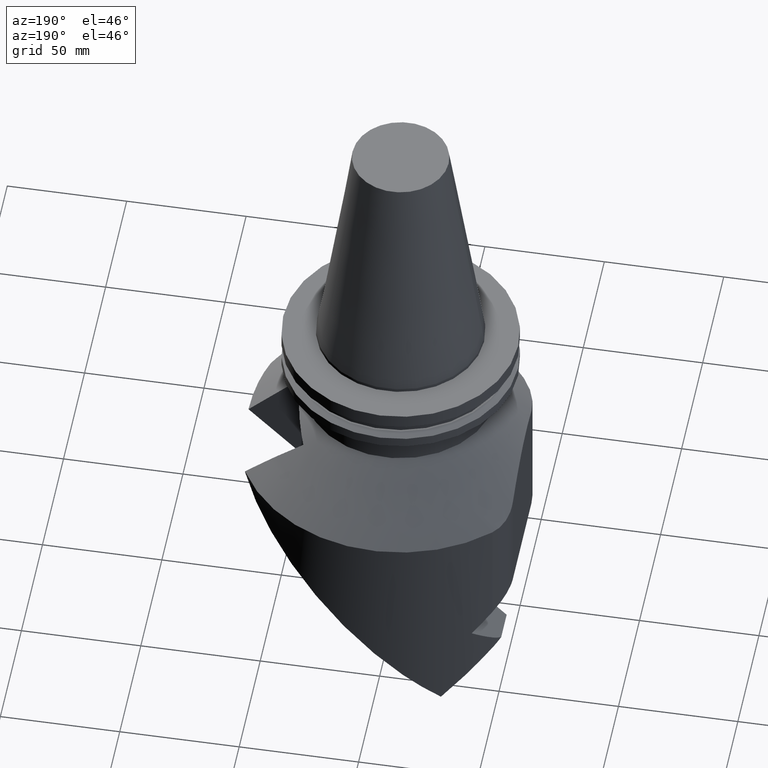
[diagram: clean part render]
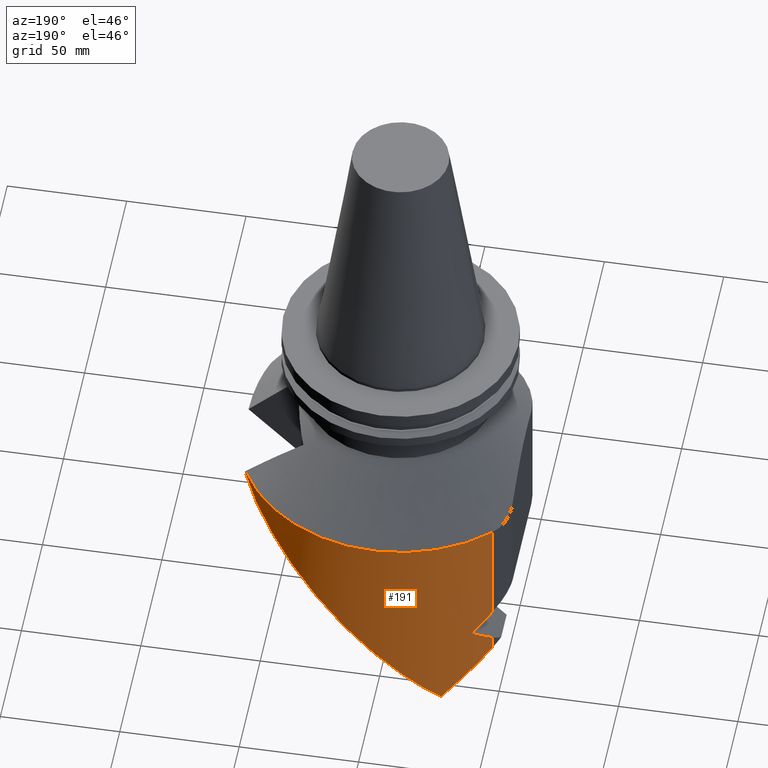
[diagram: same view with one face highlighted and labeled with its STEP entity id]
A machine part, auxiliary view. The second image highlights one B-rep face of the part: STEP entity #191.
In plain terms, the highlighted cylindrical surface (partial cylindrical patch) has radius 67.5 mm, axis along (-0, -0, -1).
Its self-contained STEP definition (entity closure, byte-faithful):
#142=EDGE_CURVE('Unnamed[1]',#345,#378,#382,.T.);
#156=EDGE_CURVE('Unnamed[1]',#378,#405,#406,.T.);
#167=EDGE_CURVE('Unnamed[1]',#334,#421,#422,.T.);
#175=EDGE_CURVE('Unnamed[1]',#421,#433,#434,.T.);
#191=ADVANCED_FACE('Unnamed[1]',(#456),#457,.T.);
#230=EDGE_CURVE('Unnamed[1]',#508,#359,#509,.T.);
#284=EDGE_CURVE('Unnamed[1]',#359,#345,#576,.T.);
#300=EDGE_CURVE('Unnamed[1]',#405,#334,#597,.T.);
#302=EDGE_CURVE('Unnamed[1]',#433,#508,#599,.T.);
#334=VERTEX_POINT('',#626);
#345=VERTEX_POINT('',#649);
#359=VERTEX_POINT('',#667);
#378=VERTEX_POINT('',#692);
#382=ELLIPSE('',#697,95.459415460198,67.5000000000011);
#405=VERTEX_POINT('',#739);
#406=LINE('',#740,#741);
#421=VERTEX_POINT('',#762);
#422=LINE('',#763,#764);
#433=VERTEX_POINT('',#789);
#434=ELLIPSE('',#790,95.4594154601865,67.5000000000011);
#456=FACE_OUTER_BOUND('',#818,.T.);
#457=CYLINDRICAL_SURFACE('',#819,67.5000000000011);
#508=VERTEX_POINT('',#924);
#509=LINE('',#925,#926);
#576=ELLIPSE('',#1050,95.4594154601875,67.5000000000011);
#597=CIRCLE('',#1078,67.5000000000005);
#599=ELLIPSE('',#1081,95.4594154601836,67.5000000000011);
#626=CARTESIAN_POINT('',(59.5666643350096,31.7500000000006,-63.1500223208128));
#649=CARTESIAN_POINT('',(-39.3858477120931,54.8179259002038,-117.953871570686));
#667=CARTESIAN_POINT('',(-46.8947368421079,48.5503208692747,-125.462760700701));
#692=CARTESIAN_POINT('',(-46.8947368421079,48.5503208692747,-110.444982440669));
#697=AXIS2_PLACEMENT_3D('',#1164,#1165,#1166);
#739=CARTESIAN_POINT('',(-46.8947368421073,48.5503208692774,-63.1500223208108));
#740=CARTESIAN_POINT('',(-46.8947368421079,48.5503208692747,-292.69346914569));
#741=VECTOR('',#1189,1.0);
#762=CARTESIAN_POINT('',(59.5666643350103,31.7500000000006,-63.549086738336));
#763=CARTESIAN_POINT('',(59.5666643350094,31.7500000000008,-106.992179608336));
#764=VECTOR('',#1204,1.0);
#789=CARTESIAN_POINT('',(-27.7185858225151,61.5461615375015,-150.83433689586));
#790=AXIS2_PLACEMENT_3D('',#1209,#1210,#1211);
#818=EDGE_LOOP('',(#1242,#1243,#1244,#1245,#1246,#1247,#1248,#1249));
#819=AXIS2_PLACEMENT_3D('',#1250,#1251,#1252);
#924=CARTESIAN_POINT('',(-46.8947368421079,48.5503208692747,-131.658185876268));
#925=CARTESIAN_POINT('',(-46.8947368421079,48.5503208692747,-292.69346914569));
#926=VECTOR('',#1304,1.0);
#1050=AXIS2_PLACEMENT_3D('',#1372,#1373,#1374);
#1078=AXIS2_PLACEMENT_3D('',#1408,#1409,#1410);
#1081=AXIS2_PLACEMENT_3D('',#1411,#1412,#1413);
#1164=CARTESIAN_POINT('',(-4.23147899509954E-012,-3.49364358071598E-014,-157.339719282787));
#1165=DIRECTION('',(0.707106781186652,-1.57009245868447E-016,0.707106781186443));
#1166=DIRECTION('',(-0.707106781186443,4.71027737605109E-016,0.707106781186652));
#1189=DIRECTION('',(-1.22464679914735E-016,2.22044604925031E-016,1.0));
#1204=DIRECTION('',(-1.60807529078777E-014,-2.22044604925024E-016,-1.0));
#1209=CARTESIAN_POINT('',(-3.68113181879651E-012,-2.73371883071287E-014,-123.115751073349));
#1210=DIRECTION('',(-0.707106781186544,4.71027737605132E-016,0.707106781186551));
#1211=DIRECTION('',(-0.707106781186551,1.5700924586838E-016,-0.707106781186544));
#1242=ORIENTED_EDGE('',*,*,#167,.T.);
#1243=ORIENTED_EDGE('',*,*,#175,.T.);
#1244=ORIENTED_EDGE('',*,*,#302,.T.);
#1245=ORIENTED_EDGE('',*,*,#230,.T.);
#1246=ORIENTED_EDGE('',*,*,#284,.T.);
#1247=ORIENTED_EDGE('',*,*,#142,.T.);
#1248=ORIENTED_EDGE('',*,*,#156,.T.);
#1249=ORIENTED_EDGE('',*,*,#300,.T.);
#1250=CARTESIAN_POINT('',(-3.42640079437852E-012,-2.38198374714391E-014,-107.275011160406));
#1251=DIRECTION('',(-1.60807529078777E-014,-2.22044604925024E-016,-1.0));
#1252=DIRECTION('',(-1.0,4.44089209850066E-016,1.60807529078777E-014));
#1304=DIRECTION('',(-1.22464679914735E-016,2.22044604925031E-016,1.0));
#1372=CARTESIAN_POINT('',(-2.96477082484852E-012,-1.74456058174209E-014,-78.5680238585955));
#1373=DIRECTION('',(0.707106781186551,-4.71027737605133E-016,-0.707106781186544));
#1374=DIRECTION('',(-0.707106781186544,1.57009245868375E-016,-0.707106781186551));
#1408=CARTESIAN_POINT('',(-2.71683775178614E-012,-1.40221217572304E-014,-63.1500223208119));
#1409=DIRECTION('',(-1.60807529078777E-014,-2.22044604925024E-016,-1.0));
#1410=DIRECTION('',(-1.0,4.44089209850066E-016,1.60807529078777E-014));
#1411=CARTESIAN_POINT('',(-4.57260327793171E-012,-3.96467131832083E-014,-178.552922718371));
#1412=DIRECTION('',(0.707106781186545,-1.57009245868376E-016,0.70710678118655));
#1413=DIRECTION('',(-0.70710678118655,4.71027737605133E-016,0.707106781186545));